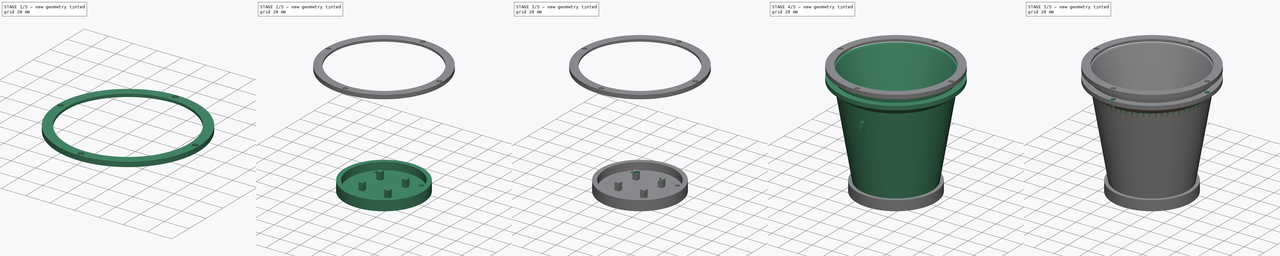
[diagram: build sequence overview — one tinted view per stage of 5, left to right]
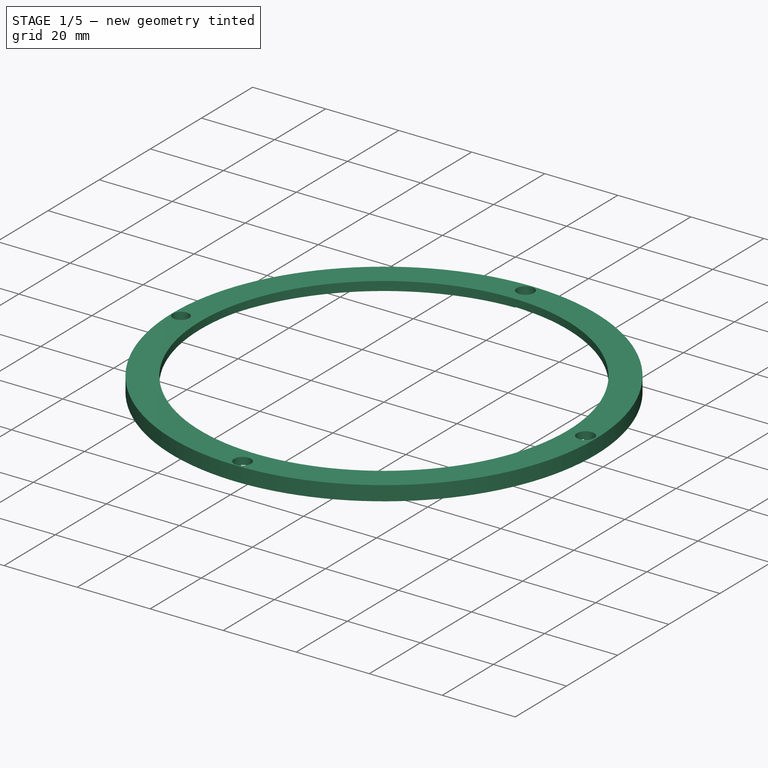
[diagram: stage 1 of 5 — iso view after this stage's code; geometry added in this stage tinted green]
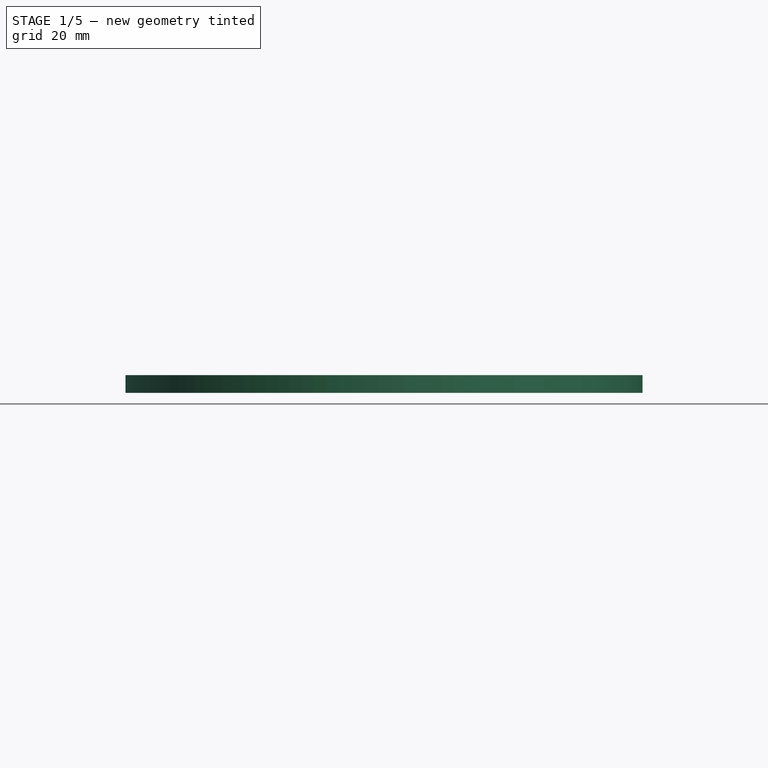
[diagram: stage 1 of 5 — front view after this stage's code; geometry added in this stage tinted green]
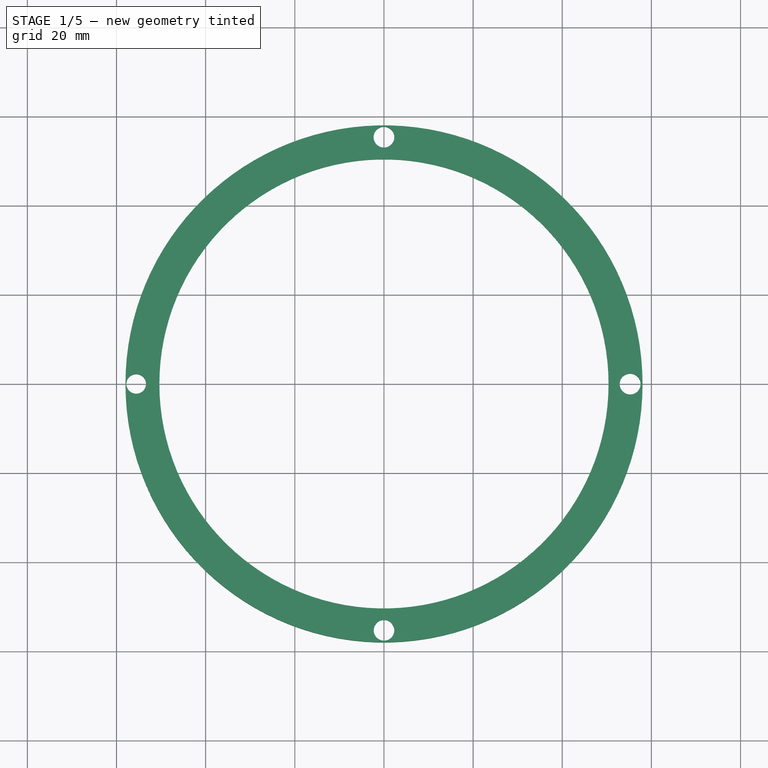
[diagram: stage 1 of 5 — top view after this stage's code; geometry added in this stage tinted green]
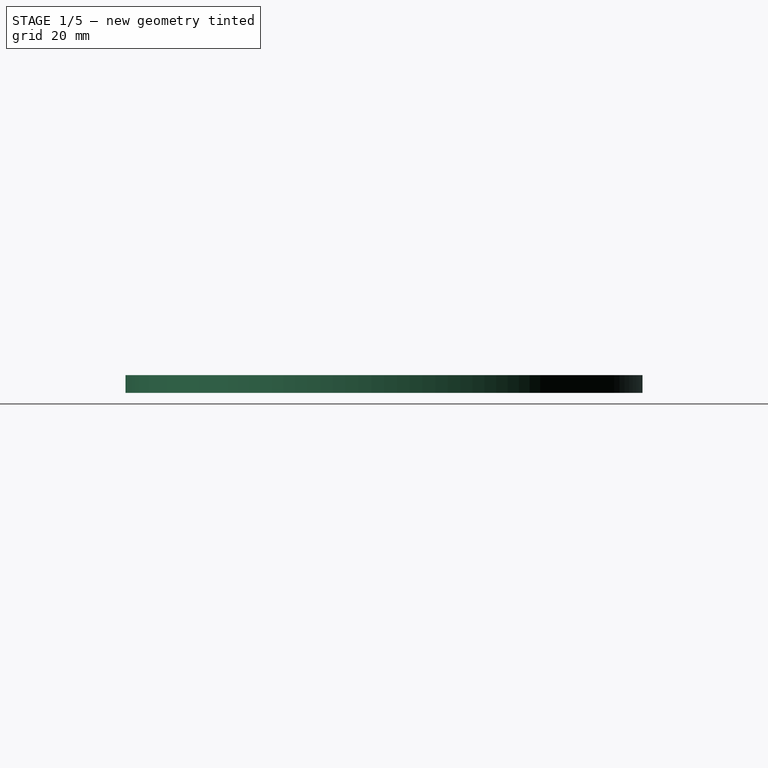
[diagram: stage 1 of 5 — right view after this stage's code; geometry added in this stage tinted green]
FCSTD DOCUMENT  (FreeCAD 0.16R6706 (Git))
Label: enclosure007(not James Bond)
License: All rights reserved
LicenseURL: http://en.wikipedia.org/wiki/All_rights_reserved
objects: Sketcher::SketchObject×19, PartDesign::Pocket×12, PartDesign::Pad×4, PartDesign::Revolution×2, PartDesign::MultiTransform×1, Part::Cut×1
note: 57 computed .brp shape members not serialized (recipe doc carries the construction recipe); baked Part::Feature solids carry a one-line shape summary decoded from their .brp

FEATURE [Sketcher::SketchObject] Sketch016
  Placement = pos=(0,0,100) rot=(0,0,1;0rad)
  sketch-geometry (1):
    g0: Circle CenterX=0.009453 CenterY=0.01044 CenterZ=0 NormalX=0 NormalY=0 NormalZ=1 Radius=58.0023
FEATURE [PartDesign::Pad] Pad003
  Length = 4
  Length2 = 100
  Placement = pos=(0,0,100) rot=(0,0,1;0rad)
  Sketch = -> Sketch016
  Type = 0
FEATURE [Sketcher::SketchObject] Sketch017
  Placement = pos=(0,0,100) rot=(1,0,0;3.14159rad)
  Support = -> Pad003 [Face2]
  sketch-geometry (1):
    g0: Circle CenterX=0 CenterY=0 CenterZ=0 NormalX=0 NormalY=0 NormalZ=1 Radius=53.6616
FEATURE [PartDesign::Pocket] Pocket009
  Length = 2
  Placement = pos=(0,0,100) rot=(0,0,1;0rad)
  Sketch = -> Sketch017
  Type = 0
FEATURE [Sketcher::SketchObject] Sketch018
  Placement = pos=(0,0,102) rot=(1,0,0;3.14159rad)
  Support = -> Pocket009 [Face5]
  sketch-geometry (1):
    g0: Circle CenterX=0 CenterY=0 CenterZ=0 NormalX=0 NormalY=0 NormalZ=1 Radius=50.3822
FEATURE [PartDesign::Pocket] Pocket010
  Length = 10
  Placement = pos=(0,0,100) rot=(0,0,1;0rad)
  Sketch = -> Sketch018
  Type = 0
FEATURE [Sketcher::SketchObject] Sketch019
  Placement = pos=(0,0,104) rot=(0,0,1;0rad)
  Support = -> Pocket010 [Face3]
  sketch-geometry (4):
    g0: Circle CenterX=55.2273 CenterY=-0.025824 CenterZ=0 NormalX=0 NormalY=0 NormalZ=1 Radius=2.34262
    g1: Circle CenterX=0.006845 CenterY=-55.2913 CenterZ=0 NormalX=0 NormalY=0 NormalZ=1 Radius=2.30952
    g2: Circle CenterX=-55.5846 CenterY=0.009231 CenterZ=0 NormalX=0 NormalY=0 NormalZ=1 Radius=2.20176
    g3: Circle CenterX=-0.004998 CenterY=55.3713 CenterZ=0 NormalX=0 NormalY=0 NormalZ=1 Radius=2.32982
FEATURE [PartDesign::Pocket] Pocket011  label="Assembly-C"
  Length = 5
  Placement = pos=(0,0,100) rot=(0,0,1;0rad)
  Sketch = -> Sketch019
  Type = 0
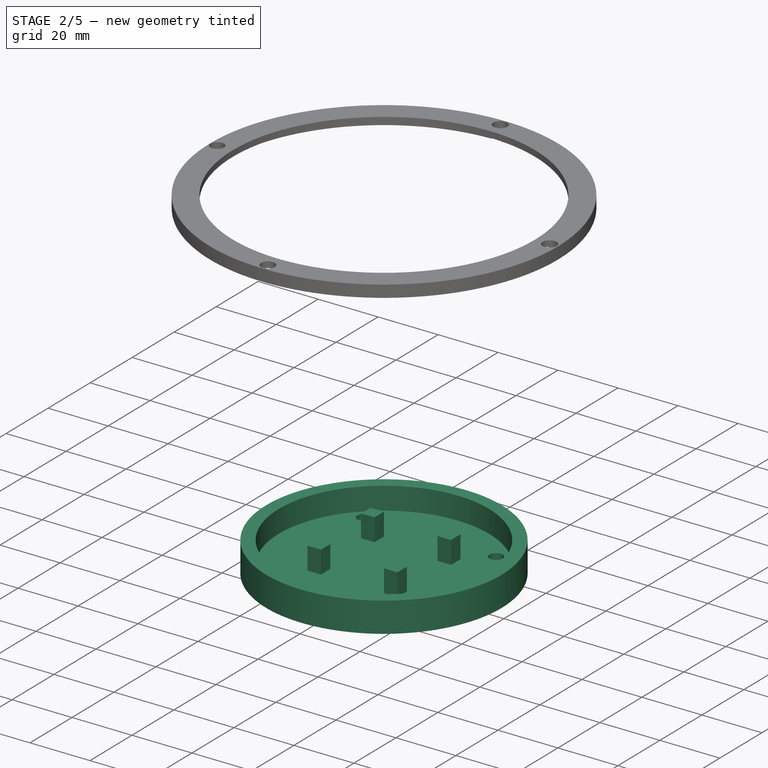
[diagram: stage 2 of 5 — iso view after this stage's code; geometry added in this stage tinted green]
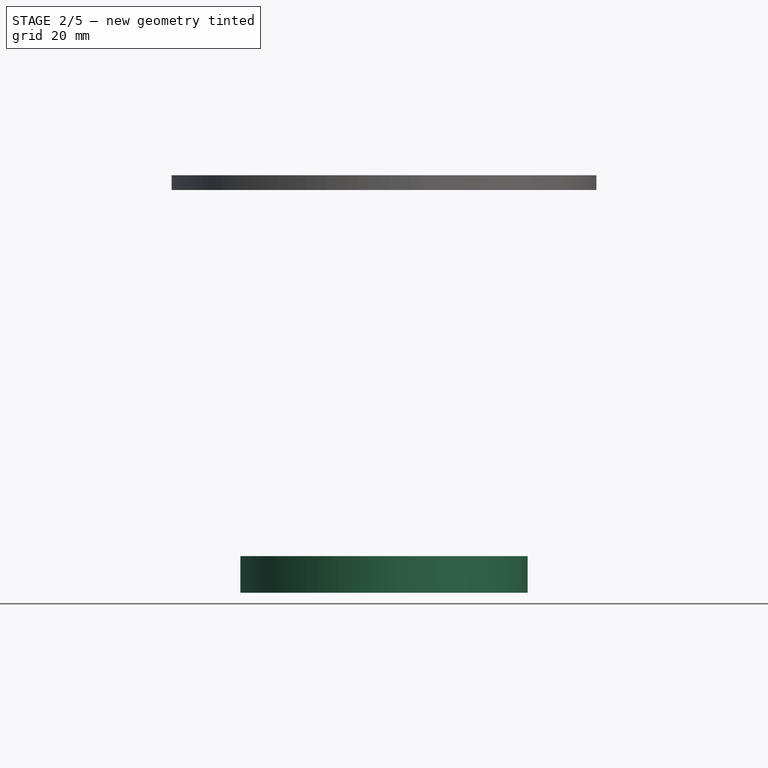
[diagram: stage 2 of 5 — front view after this stage's code; geometry added in this stage tinted green]
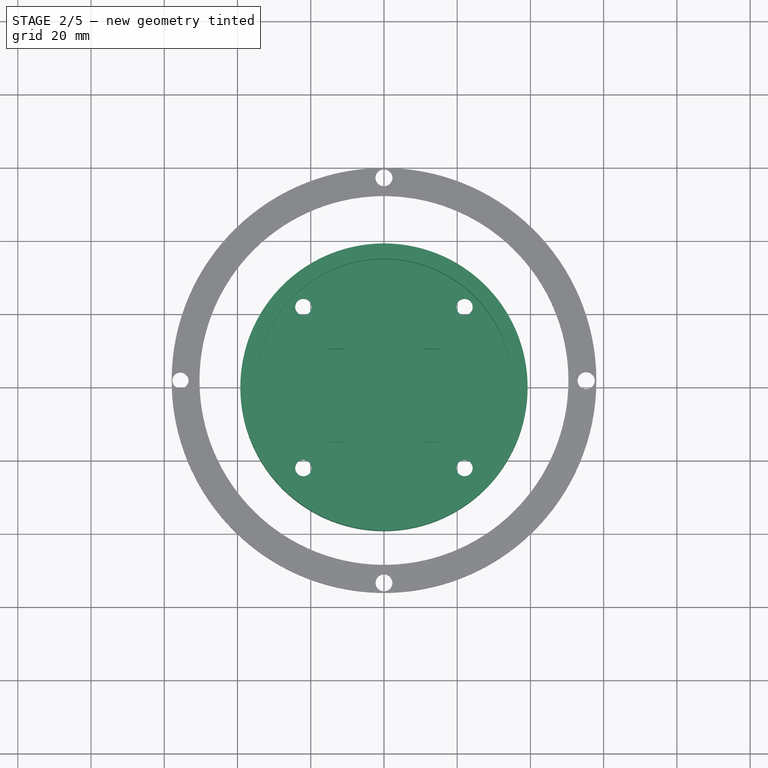
[diagram: stage 2 of 5 — top view after this stage's code; geometry added in this stage tinted green]
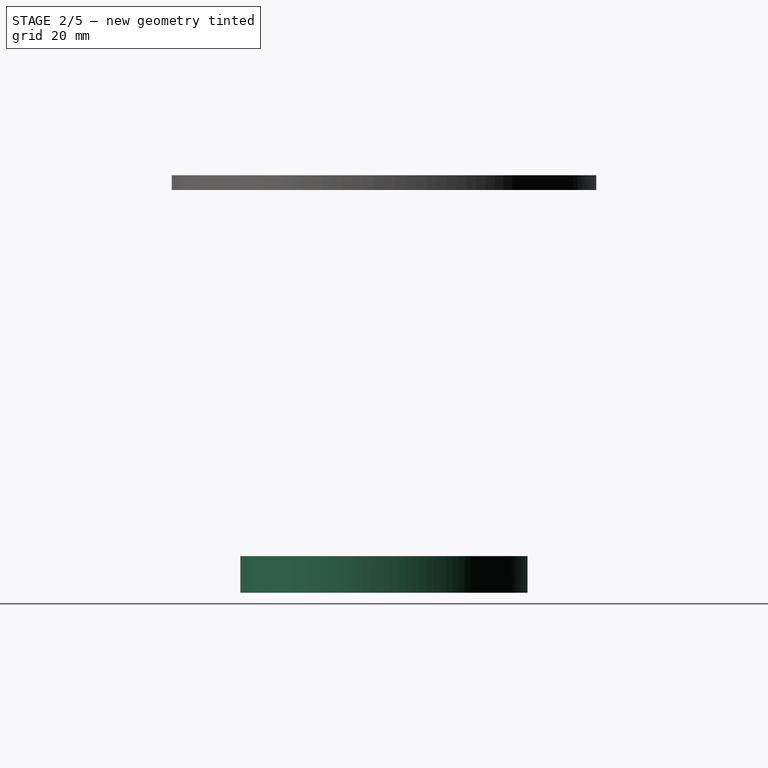
[diagram: stage 2 of 5 — right view after this stage's code; geometry added in this stage tinted green]
FEATURE [Sketcher::SketchObject] Sketch006
  Placement = pos=(0,0,-10) rot=(0,0,1;0rad)
  sketch-geometry (1):
    g0: Circle CenterX=0 CenterY=0 CenterZ=0 NormalX=0 NormalY=0 NormalZ=1 Radius=39.23
FEATURE [PartDesign::Pad] Pad001
  Length = 10
  Length2 = 100
  Placement = pos=(0,0,-10) rot=(0,0,1;0rad)
  Sketch = -> Sketch006
  Type = 0
FEATURE [Sketcher::SketchObject] Sketch007
  Support = -> Pad001 [Face3]
  sketch-geometry (1):
    g0: Circle CenterX=0 CenterY=0 CenterZ=0 NormalX=0 NormalY=0 NormalZ=1 Radius=35.0307
FEATURE [PartDesign::Pocket] Pocket003
  Length = 7.5
  Placement = pos=(0,0,-10) rot=(0,0,1;0rad)
  Sketch = -> Sketch007
  Type = 0
FEATURE [Sketcher::SketchObject] Sketch008
  Placement = pos=(0,0,-7.5) rot=(0,0,1;0rad)
  Support = -> Pocket003 [Face5]
  sketch-geometry (4):
    g0: Circle CenterX=22 CenterY=-22 CenterZ=0 NormalX=0 NormalY=0 NormalZ=1 Radius=2.22338
    g1: Circle CenterX=22 CenterY=22 CenterZ=0 NormalX=0 NormalY=0 NormalZ=1 Radius=2.22785
    g2: Circle CenterX=-22 CenterY=22 CenterZ=0 NormalX=0 NormalY=0 NormalZ=1 Radius=2.23607
    g3: Circle CenterX=-22 CenterY=-22 CenterZ=0 NormalX=0 NormalY=0 NormalZ=1 Radius=2.23607
FEATURE [PartDesign::Pocket] Pocket004
  Length = 5
  Placement = pos=(0,0,-10) rot=(0,0,1;0rad)
  Sketch = -> Sketch008
  Type = 0
FEATURE [Sketcher::SketchObject] Sketch009
  Placement = pos=(0,0,-7.5) rot=(0,0,1;0rad)
  Support = -> Pocket004 [Face9]
  sketch-geometry (4):
    g0: LineSegment StartX=-13 StartY=-13 StartZ=0 EndX=13 EndY=-13 EndZ=0
    g1: LineSegment StartX=13 StartY=-13 StartZ=0 EndX=13 EndY=13 EndZ=0
    g2: LineSegment StartX=13 StartY=13 StartZ=0 EndX=-13 EndY=13 EndZ=0
    g3: LineSegment StartX=-13 StartY=13 StartZ=0 EndX=-13 EndY=-13 EndZ=0
  constraints (8):
    c: Coincident(g0,g1)
    c: Coincident(g1,g2)
    c: Coincident(g2,g3)
    c: Coincident(g3,g0)
    c: Horizontal(g0)
    c: Horizontal(g2)
    c: Vertical(g1)
    c: Vertical(g3)
FEATURE [Sketcher::SketchObject] Sketch010
  Placement = pos=(0,0,-7.5) rot=(0,0,1;0rad)
  Support = -> Pocket004 [Face9]
FEATURE [Sketcher::SketchObject] Sketch011
  Placement = pos=(0,0,-7.5) rot=(0,0,1;0rad)
  Support = -> Pocket004 [Face9]
  sketch-geometry (16):
    g0: LineSegment StartX=15 StartY=15 StartZ=0 EndX=10.5 EndY=15 EndZ=0
    g1: LineSegment StartX=10.5 StartY=15 StartZ=0 EndX=10.5 EndY=10.5 EndZ=0
    g2: LineSegment StartX=10.5 StartY=10.5 StartZ=0 EndX=15 EndY=10.5 EndZ=0
    g3: LineSegment StartX=15 StartY=10.5 StartZ=0 EndX=15 EndY=15 EndZ=0
    g4: LineSegment StartX=15 StartY=-15 StartZ=0 EndX=10.5 EndY=-15 EndZ=0
    g5: LineSegment StartX=10.5 StartY=-15 StartZ=0 EndX=10.5 EndY=-10.5 EndZ=0
    g6: LineSegment StartX=10.5 StartY=-10.5 StartZ=0 EndX=15 EndY=-10.5 EndZ=0
    g7: LineSegment StartX=15 StartY=-10.5 StartZ=0 EndX=15 EndY=-15 EndZ=0
    g8: LineSegment StartX=-15 StartY=-15 StartZ=0 EndX=-10.5 EndY=-15 EndZ=0
    g9: LineSegment StartX=-10.5 StartY=-15 StartZ=0 EndX=-10.5 EndY=-10.5 EndZ=0
    g10: LineSegment StartX=-10.5 StartY=-10.5 StartZ=0 EndX=-15 EndY=-10.5 EndZ=0
    g11: LineSegment StartX=-15 StartY=-10.5 StartZ=0 EndX=-15 EndY=-15 EndZ=0
    g12: LineSegment StartX=-15 StartY=15 StartZ=0 EndX=-10.5 EndY=15 EndZ=0
    g13: LineSegment StartX=-10.5 StartY=15 StartZ=0 EndX=-10.5 EndY=10.5 EndZ=0
    g14: LineSegment StartX=-10.5 StartY=10.5 StartZ=0 EndX=-15 EndY=10.5 EndZ=0
    g15: LineSegment StartX=-15 StartY=10.5 StartZ=0 EndX=-15 EndY=15 EndZ=0
  constraints (32):
    c: Coincident(g0,g1)
    c: Coincident(g1,g2)
    c: Coincident(g2,g3)
    c: Coincident(g3,g0)
    c: Horizontal(g0)
    c: Horizontal(g2)
    c: Vertical(g1)
    c: Vertical(g3)
    c: Coincident(g4,g5)
    c: Coincident(g5,g6)
    c: Coincident(g6,g7)
    c: Coincident(g7,g4)
    c: Horizontal(g4)
    c: Horizontal(g6)
    c: Vertical(g5)
    c: Vertical(g7)
    c: Coincident(g8,g9)
    c: Coincident(g9,g10)
    c: Coincident(g10,g11)
    c: Coincident(g11,g8)
    c: Horizontal(g8)
    c: Horizontal(g10)
    c: Vertical(g9)
    c: Vertical(g11)
    c: Coincident(g12,g13)
    c: Coincident(g13,g14)
    c: Coincident(g14,g15)
    c: Coincident(g15,g12)
    c: Horizontal(g12)
    c: Horizontal(g14)
    c: Vertical(g13)
    c: Vertical(g15)
FEATURE [PartDesign::Pad] Pad002
  Length = 7.5
  Length2 = 100
  Placement = pos=(0,0,-10) rot=(0,0,1;0rad)
  Sketch = -> Sketch011
  Type = 0
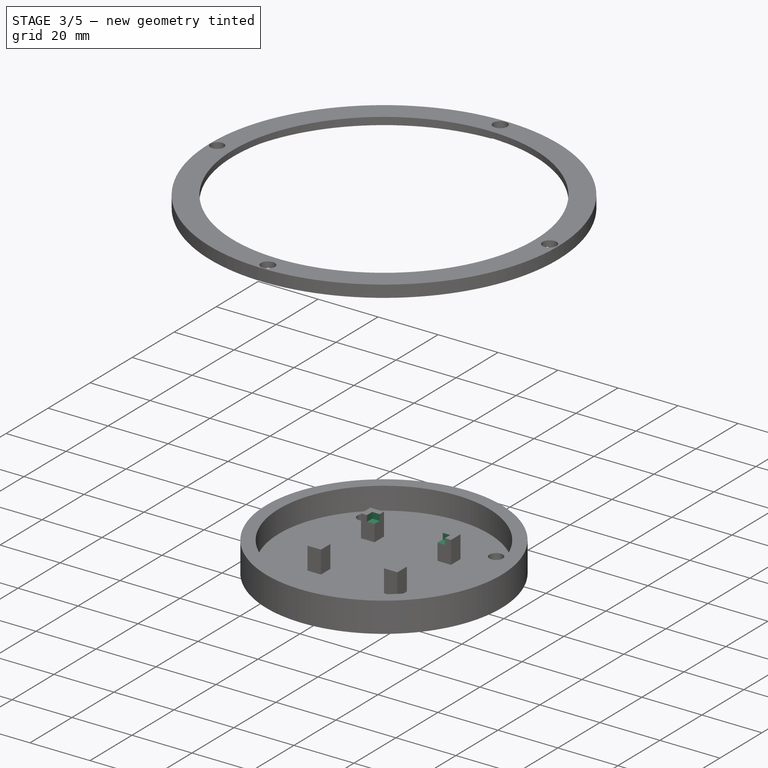
[diagram: stage 3 of 5 — iso view after this stage's code; geometry added in this stage tinted green]
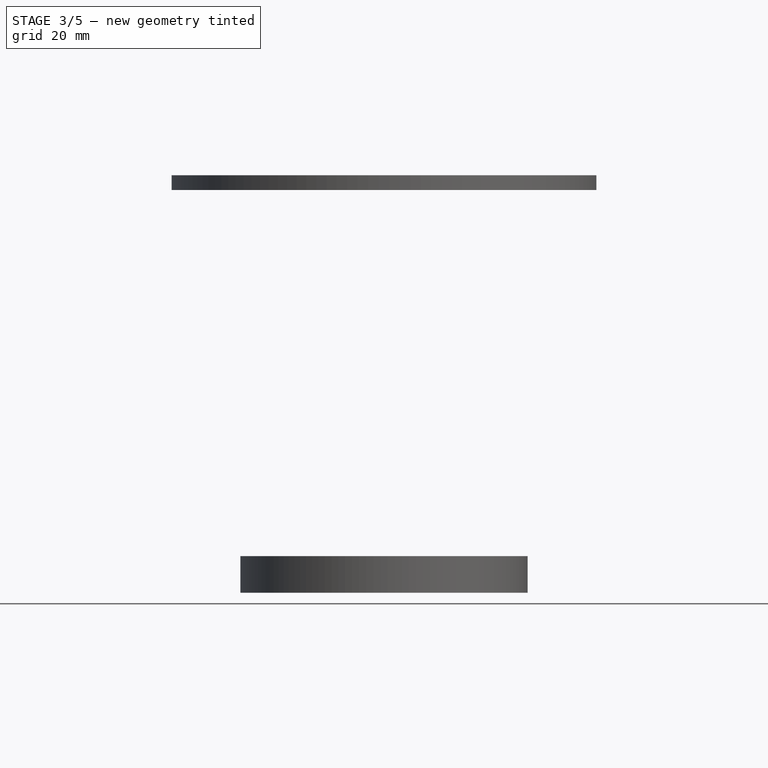
[diagram: stage 3 of 5 — front view after this stage's code; geometry added in this stage tinted green]
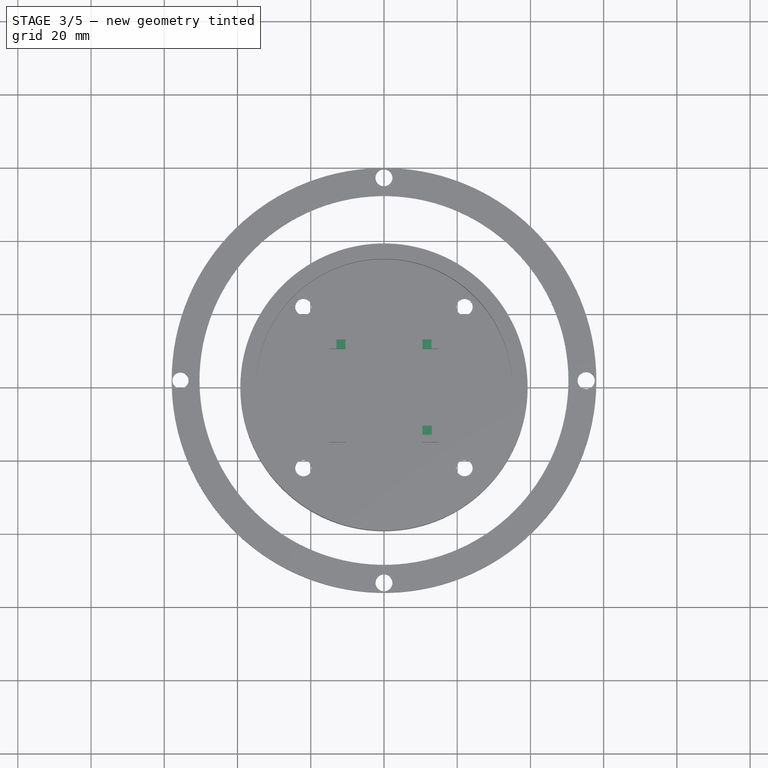
[diagram: stage 3 of 5 — top view after this stage's code; geometry added in this stage tinted green]
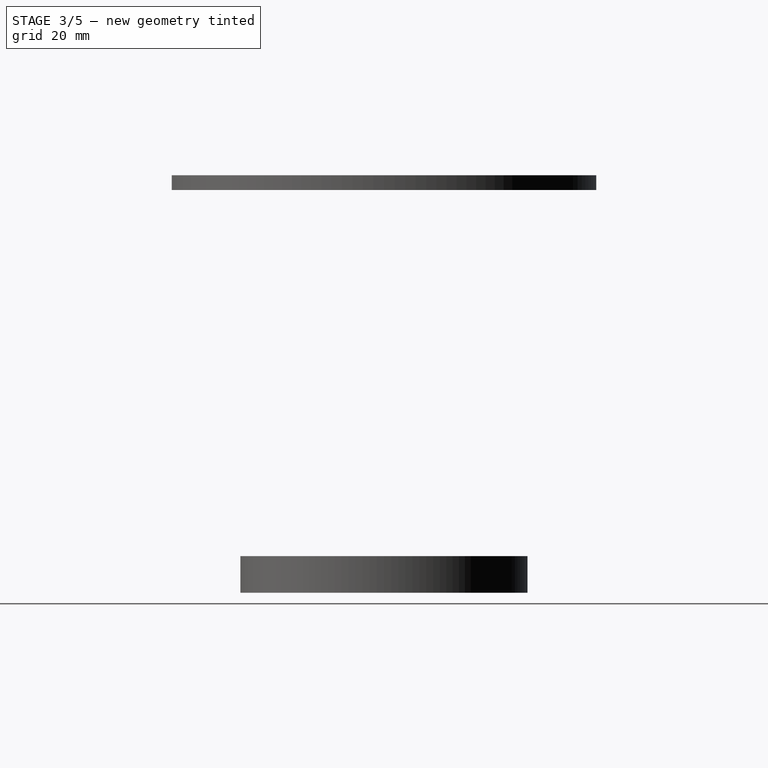
[diagram: stage 3 of 5 — right view after this stage's code; geometry added in this stage tinted green]
FEATURE [Sketcher::SketchObject] Sketch012
  Support = -> Pad002 [Face26]
  sketch-geometry (4):
    g0: LineSegment StartX=-12.9907 StartY=12.9784 StartZ=0 EndX=-10.1593 EndY=12.9784 EndZ=0
    g1: LineSegment StartX=-10.1593 StartY=12.9784 StartZ=0 EndX=-10.1593 EndY=9.88996 EndZ=0
    g2: LineSegment StartX=-10.1593 StartY=9.88996 StartZ=0 EndX=-12.9907 EndY=9.88996 EndZ=0
    g3: LineSegment StartX=-12.9907 StartY=9.88996 StartZ=0 EndX=-12.9907 EndY=12.9784 EndZ=0
  constraints (8):
    c: Coincident(g0,g1)
    c: Coincident(g1,g2)
    c: Coincident(g2,g3)
    c: Coincident(g3,g0)
    c: Horizontal(g0)
    c: Horizontal(g2)
    c: Vertical(g1)
    c: Vertical(g3)
FEATURE [PartDesign::Pocket] Pocket005
  Length = 2
  Placement = pos=(0,0,-10) rot=(0,0,1;0rad)
  Sketch = -> Sketch012
  Type = 0
FEATURE [Sketcher::SketchObject] Sketch013
  Support = -> Pocket005 [Face3]
  sketch-geometry (4):
    g0: LineSegment StartX=12.9727 StartY=12.9983 StartZ=0 EndX=10.016 EndY=12.9983 EndZ=0
    g1: LineSegment StartX=10.016 StartY=12.9983 StartZ=0 EndX=10.016 EndY=10.1423 EndZ=0
    g2: LineSegment StartX=10.016 StartY=10.1423 StartZ=0 EndX=12.9727 EndY=10.1423 EndZ=0
    g3: LineSegment StartX=12.9727 StartY=10.1423 StartZ=0 EndX=12.9727 EndY=12.9983 EndZ=0
  constraints (8):
    c: Coincident(g0,g1)
    c: Coincident(g1,g2)
    c: Coincident(g2,g3)
    c: Coincident(g3,g0)
    c: Horizontal(g0)
    c: Horizontal(g2)
    c: Vertical(g1)
    c: Vertical(g3)
FEATURE [PartDesign::Pocket] Pocket006
  Length = 2
  Placement = pos=(0,0,-10) rot=(0,0,1;0rad)
  Sketch = -> Sketch013
  Type = 0
FEATURE [Sketcher::SketchObject] Sketch014
  Support = -> Pocket006 [Face3]
  sketch-geometry (4):
    g0: LineSegment StartX=13.041 StartY=-13.0376 StartZ=0 EndX=10.3044 EndY=-13.0376 EndZ=0
    g1: LineSegment StartX=10.3044 StartY=-13.0376 StartZ=0 EndX=10.3044 EndY=-10.2812 EndZ=0
    g2: LineSegment StartX=10.3044 StartY=-10.2812 StartZ=0 EndX=13.041 EndY=-10.2812 EndZ=0
    g3: LineSegment StartX=13.041 StartY=-10.2812 StartZ=0 EndX=13.041 EndY=-13.0376 EndZ=0
  constraints (8):
    c: Coincident(g0,g1)
    c: Coincident(g1,g2)
    c: Coincident(g2,g3)
    c: Coincident(g3,g0)
    c: Horizontal(g0)
    c: Horizontal(g2)
    c: Vertical(g1)
    c: Vertical(g3)
FEATURE [PartDesign::Pocket] Pocket007
  Length = 2
  Placement = pos=(0,0,-10) rot=(0,0,1;0rad)
  Sketch = -> Sketch014
  Type = 0
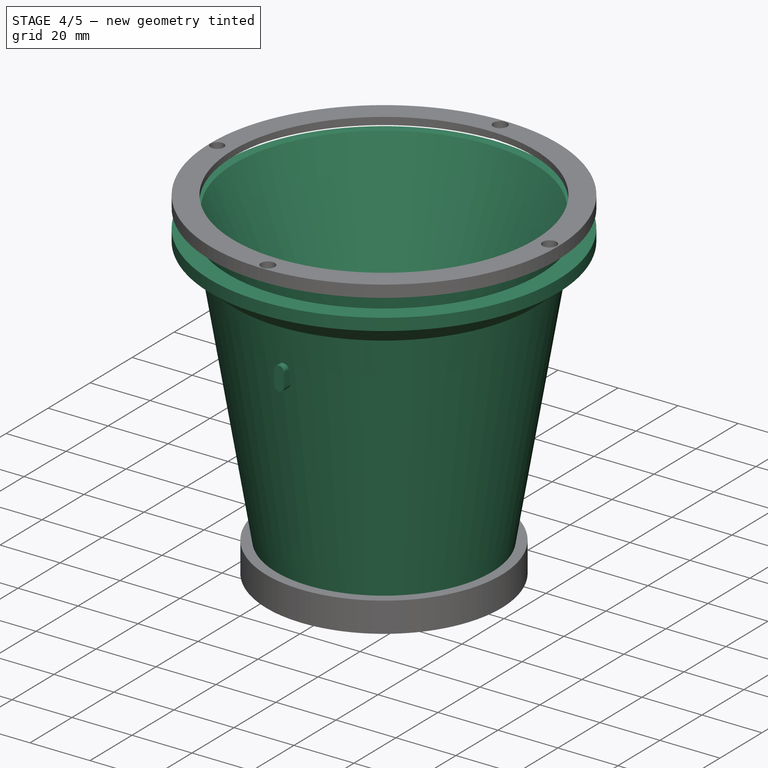
[diagram: stage 4 of 5 — iso view after this stage's code; geometry added in this stage tinted green]
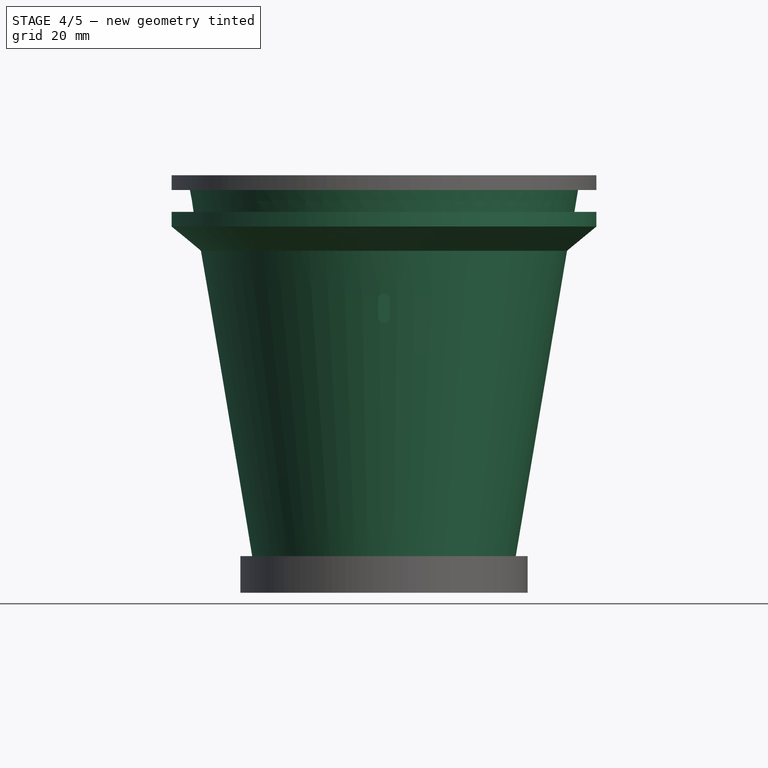
[diagram: stage 4 of 5 — front view after this stage's code; geometry added in this stage tinted green]
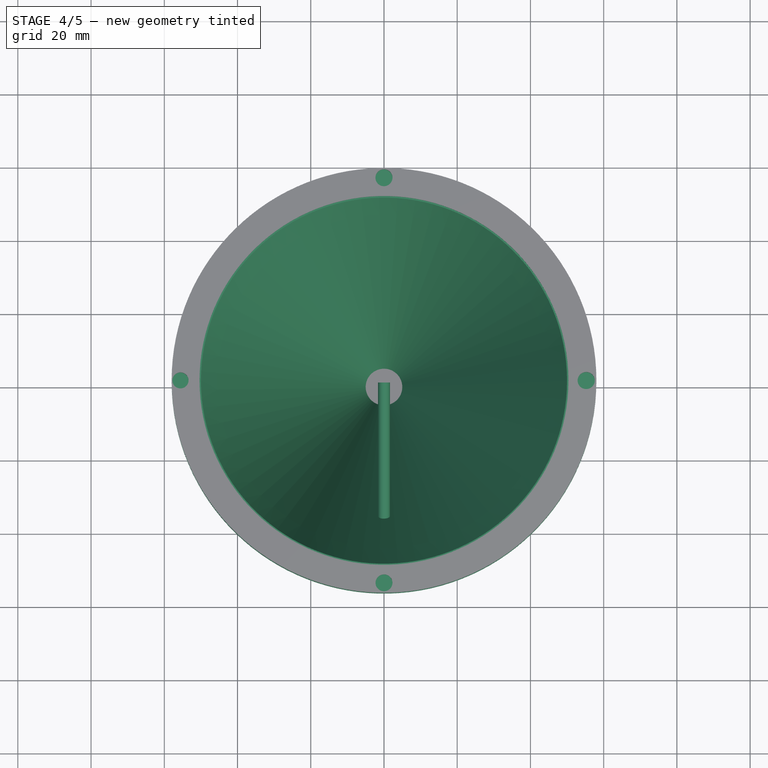
[diagram: stage 4 of 5 — top view after this stage's code; geometry added in this stage tinted green]
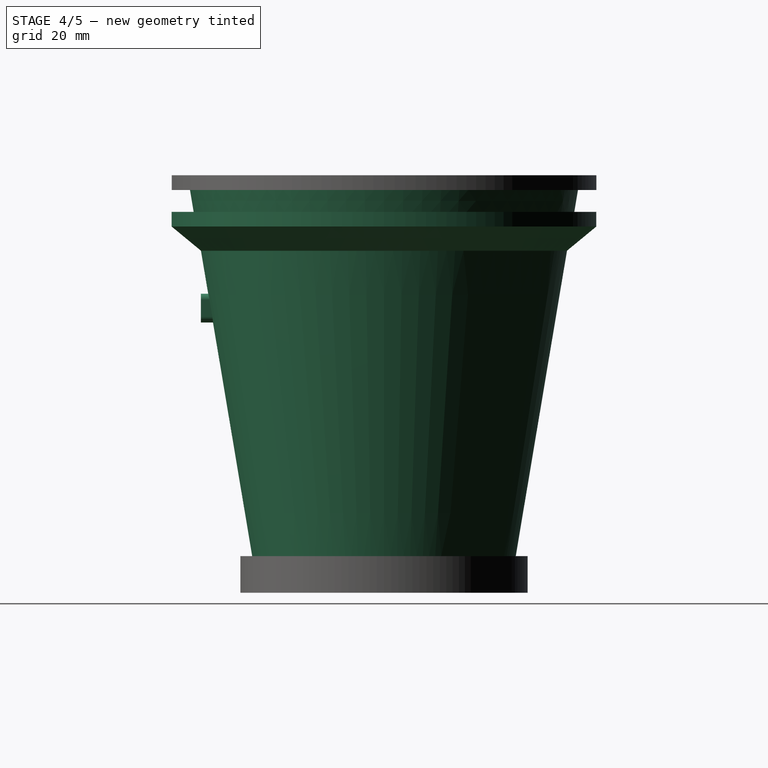
[diagram: stage 4 of 5 — right view after this stage's code; geometry added in this stage tinted green]
FEATURE [Sketcher::SketchObject] Sketch003  label="assemblyA-origin"
  Placement = pos=(0,0,0) rot=(1,0,0;1.5708rad)
  sketch-geometry (8):
    g0: LineSegment StartX=5 StartY=0 StartZ=0 EndX=50 EndY=100 EndZ=0
    g1: LineSegment StartX=50 StartY=100 StartZ=0 EndX=53 EndY=100 EndZ=0
    g2: LineSegment StartX=53 StartY=100 StartZ=0 EndX=52 EndY=94 EndZ=0
    g3: LineSegment StartX=52 StartY=94 StartZ=0 EndX=58 EndY=94 EndZ=0
    g4: LineSegment StartX=58 StartY=94 StartZ=0 EndX=58 EndY=90 EndZ=0
    g5: LineSegment StartX=58 StartY=90 StartZ=0 EndX=50 EndY=83.4028 EndZ=0
    g6: LineSegment StartX=50 StartY=83.4028 StartZ=0 EndX=36 EndY=0 EndZ=0
    g7: LineSegment StartX=36 StartY=0 StartZ=0 EndX=5 EndY=0 EndZ=0
  constraints (8):
    c: Coincident(g0,g1)
    c: Coincident(g1,g2)
    c: Coincident(g2,g3)
    c: Coincident(g3,g4)
    c: Coincident(g4,g5)
    c: Coincident(g5,g6)
    c: Coincident(g6,g7)
    c: Coincident(g7,g0)
FEATURE [PartDesign::Revolution] Revolution001
  Angle = 360
  Axis = (0,0,1)
  Base = (0,0,0)
  Placement = pos=(0,0,0) rot=(1,0,0;1.5708rad)
  ReferenceAxis = -> Sketch003 [V_Axis]
  Reversed = true
  Sketch = -> Sketch003
FEATURE [PartDesign::MultiTransform] MultiTransform
  Originals = -> [Revolution001]
  Placement = pos=(0,0,0) rot=(1,0,0;1.5708rad)
FEATURE [Sketcher::SketchObject] Sketch
  Placement = pos=(0,0,0) rot=(1,0,0;3.14159rad)
  Support = -> Revolution001 [Face8]
  sketch-geometry (4):
    g0: Circle CenterX=22 CenterY=22 CenterZ=0 NormalX=0 NormalY=0 NormalZ=1 Radius=2.11218
    g1: Circle CenterX=-22 CenterY=22 CenterZ=0 NormalX=0 NormalY=0 NormalZ=1 Radius=2.08239
    g2: Circle CenterX=22 CenterY=-22 CenterZ=0 NormalX=0 NormalY=0 NormalZ=1 Radius=2.11264
    g3: Circle CenterX=-22 CenterY=-22 CenterZ=0 NormalX=0 NormalY=0 NormalZ=1 Radius=2.0919
FEATURE [PartDesign::Pocket] Pocket001
  Length = 12
  Placement = pos=(0,0,0) rot=(1,0,0;1.5708rad)
  Sketch = -> Sketch
  Type = 0
FEATURE [Sketcher::SketchObject] Sketch004
  Placement = pos=(0,0,0) rot=(1,0,0;1.5708rad)
  sketch-geometry (4):
    g0: ArcOfCircle CenterX=0 CenterY=70 CenterZ=0 NormalX=0 NormalY=0 NormalZ=1 Radius=1.64551 StartAngle=0 EndAngle=3.14159
    g1: ArcOfCircle CenterX=0 CenterY=65.4394 CenterZ=0 NormalX=0 NormalY=0 NormalZ=1 Radius=1.64551 StartAngle=3.14159 EndAngle=6.28319
    g2: LineSegment StartX=-1.64551 StartY=70 StartZ=0 EndX=-1.64551 EndY=65.4394 EndZ=0
    g3: LineSegment StartX=1.64551 StartY=70 StartZ=0 EndX=1.64551 EndY=65.4394 EndZ=0
  constraints (6):
    c: Tangent(g0,g3) = 1.5708
    c: Tangent(g0,g2) = -1.5708
    c: Tangent(g2,g1) = -1.5708
    c: Tangent(g3,g1) = 1.5708
    c: Vertical(g2)
    c: Equal(g0,g1)
FEATURE [PartDesign::Pad] Pad
  Length = 50
  Length2 = 100
  Placement = pos=(0,0,0) rot=(1,0,0;1.5708rad)
  Sketch = -> Sketch004
  Type = 0
FEATURE [Sketcher::SketchObject] Sketch015
  Support = -> Pocket007 [Face3]
  sketch-geometry (4):
    g0: LineSegment StartX=-12.9593 StartY=-12.9865 StartZ=0 EndX=-10.2634 EndY=-12.9865 EndZ=0
    g1: LineSegment StartX=-10.2634 StartY=-12.9865 StartZ=0 EndX=-10.2634 EndY=-10.3457 EndZ=0
    g2: LineSegment StartX=-10.2634 StartY=-10.3457 StartZ=0 EndX=-12.9593 EndY=-10.3457 EndZ=0
    g3: LineSegment StartX=-12.9593 StartY=-10.3457 StartZ=0 EndX=-12.9593 EndY=-12.9865 EndZ=0
  constraints (8):
    c: Coincident(g0,g1)
    c: Coincident(g1,g2)
    c: Coincident(g2,g3)
    c: Coincident(g3,g0)
    c: Horizontal(g0)
    c: Horizontal(g2)
    c: Vertical(g1)
    c: Vertical(g3)
FEATURE [PartDesign::Pocket] Pocket008  label="Assembly B"
  Length = 2
  Placement = pos=(0,0,-10) rot=(0,0,1;0rad)
  Sketch = -> Sketch015
  Type = 0
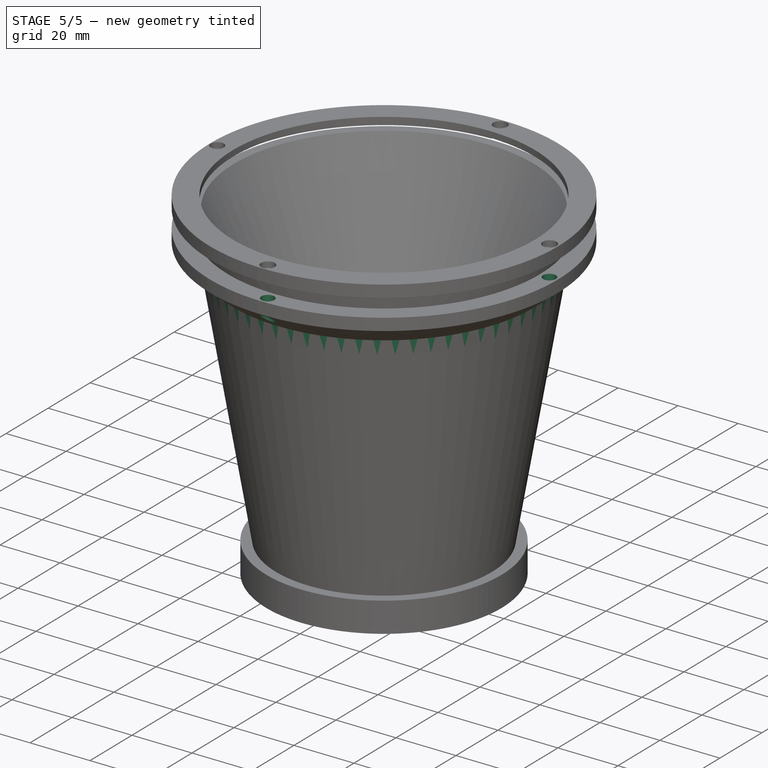
[diagram: stage 5 of 5 — iso view after this stage's code; geometry added in this stage tinted green]
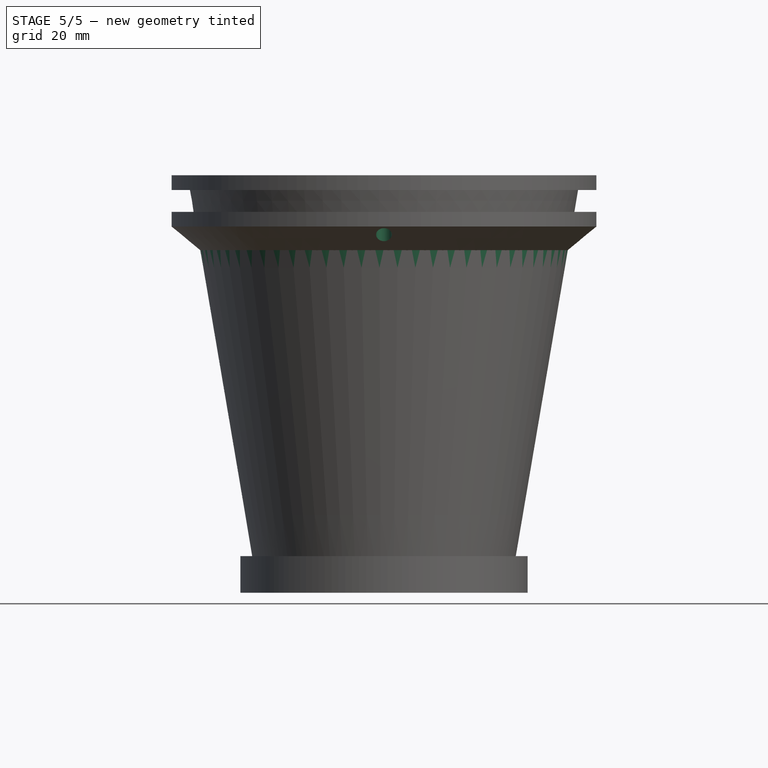
[diagram: stage 5 of 5 — front view after this stage's code; geometry added in this stage tinted green]
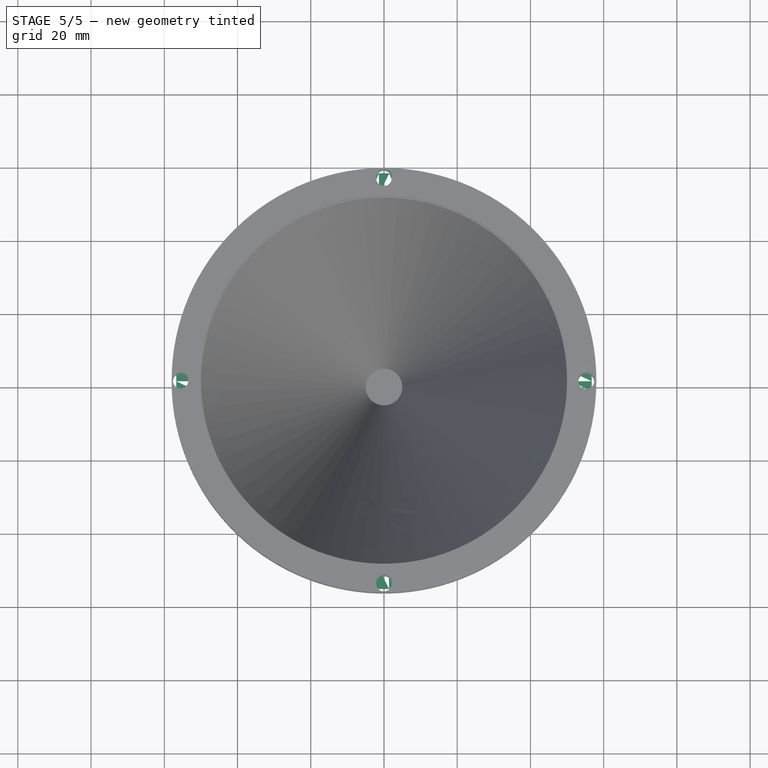
[diagram: stage 5 of 5 — top view after this stage's code; geometry added in this stage tinted green]
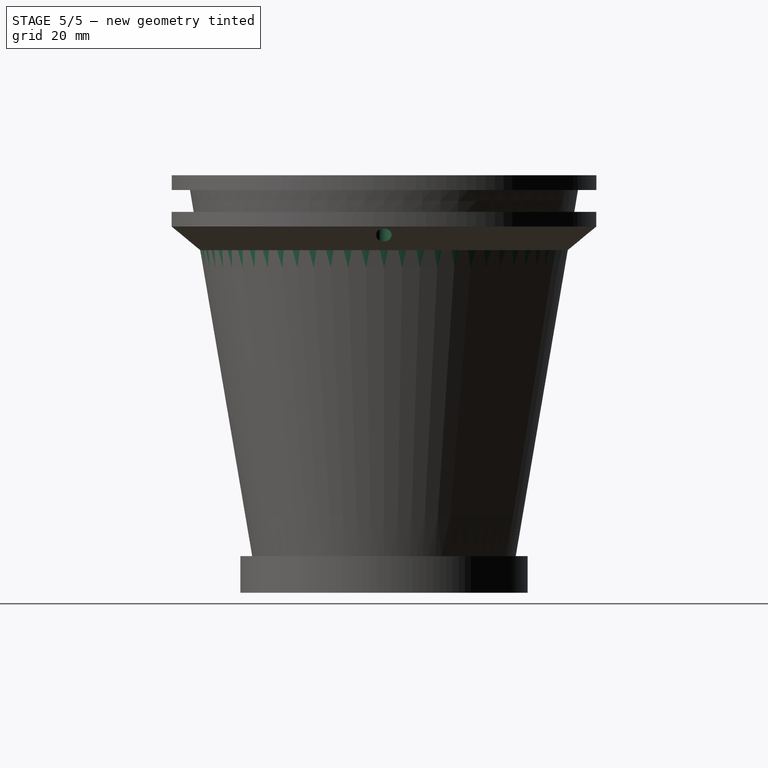
[diagram: stage 5 of 5 — right view after this stage's code; geometry added in this stage tinted green]
FEATURE [Sketcher::SketchObject] Sketch001
  Placement = pos=(0,0,0) rot=(1,0,0;1.5708rad)
  sketch-geometry (9):
    g0: LineSegment StartX=5 StartY=0 StartZ=0 EndX=36 EndY=0 EndZ=0
    g1: LineSegment StartX=36 StartY=0 StartZ=0 EndX=53 EndY=100 EndZ=0
    g2: LineSegment StartX=53 StartY=100 StartZ=0 EndX=50 EndY=100 EndZ=0
    g3: LineSegment StartX=50 StartY=100 StartZ=0 EndX=5 EndY=0 EndZ=0
    g4: LineSegment StartX=51.5348 StartY=94 StartZ=0 EndX=56.7484 EndY=94 EndZ=0
    g5: LineSegment StartX=56.7484 StartY=94 StartZ=0 EndX=56.7534 EndY=90 EndZ=0
    g6: LineSegment StartX=56.7534 StartY=90 StartZ=0 EndX=51 EndY=90 EndZ=0
    g7: LineSegment StartX=51 StartY=90 StartZ=0 EndX=51.5348 EndY=94 EndZ=0
    g8: LineSegment StartX=51.5348 StartY=94 StartZ=0 EndX=51.449 EndY=94.2977 EndZ=0
  constraints (8):
    c: Coincident(g0,g1)
    c: Coincident(g1,g2)
    c: Coincident(g2,g3)
    c: Coincident(g3,g0)
    c: Coincident(g4,g5)
    c: Coincident(g5,g6)
    c: Coincident(g6,g7)
    c: Coincident(g7,g8)
FEATURE [PartDesign::Revolution] Revolution
  Angle = 360
  Axis = (0,0,1)
  Base = (0,0,0)
  Placement = pos=(0,0,0) rot=(1,0,0;1.5708rad)
  ReferenceAxis = -> Sketch001 [V_Axis]
  Reversed = true
  Sketch = -> Sketch001
FEATURE [PartDesign::Pocket] Pocket
  Length = 12
  Placement = pos=(0,0,0) rot=(1,0,0;1.5708rad)
  Type = 0
FEATURE [Part::Cut] Cut
  Base = -> Pocket001
  Tool = -> Pad
FEATURE [Sketcher::SketchObject] Sketch005
  Placement = pos=(0,0,94) rot=(0,0,1;0rad)
  Support = -> Cut [Face14]
  sketch-geometry (4):
    g0: Circle CenterX=55.2184 CenterY=-0.064825 CenterZ=0 NormalX=0 NormalY=0 NormalZ=1 Radius=2.14912
    g1: Circle CenterX=0 CenterY=55.3997 CenterZ=0 NormalX=0 NormalY=0 NormalZ=1 Radius=2.10877
    g2: Circle CenterX=-55.5488 CenterY=0 CenterZ=0 NormalX=0 NormalY=0 NormalZ=1 Radius=2.06514
    g3: Circle CenterX=0 CenterY=-55.3111 CenterZ=0 NormalX=0 NormalY=0 NormalZ=1 Radius=2.14971
FEATURE [PartDesign::Pocket] Pocket002  label="assemblyA-funnel"
  Length = 15
  Sketch = -> Sketch005
  Type = 0
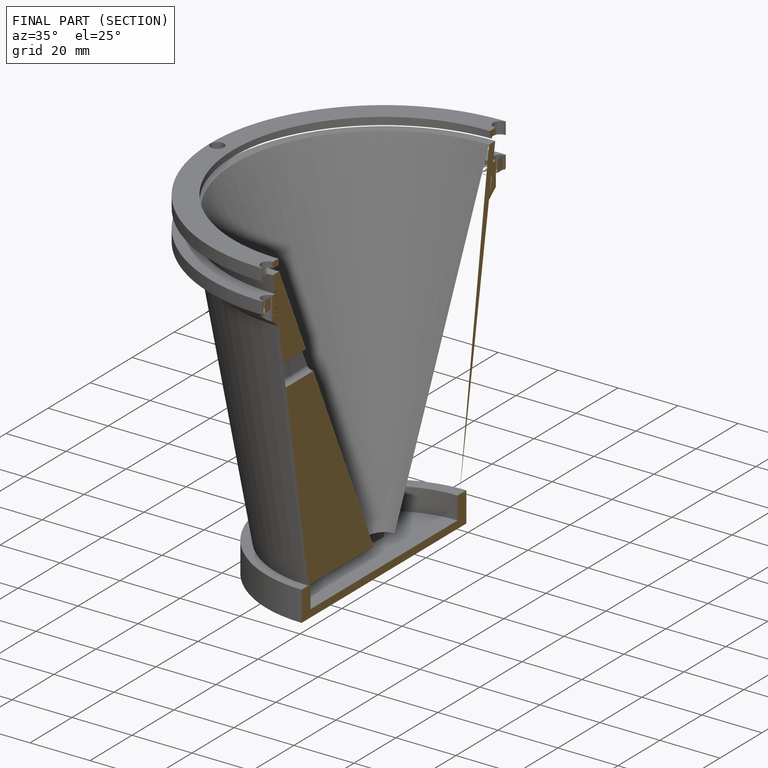
[diagram: finished part — half-section view (interior)]
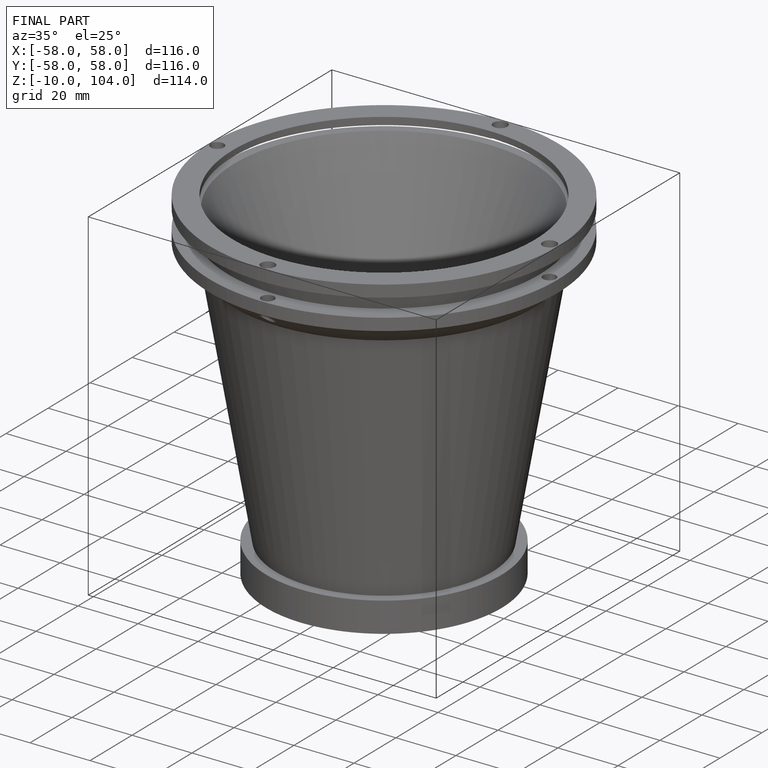
[diagram: finished part — iso view with bounding-box wireframe]
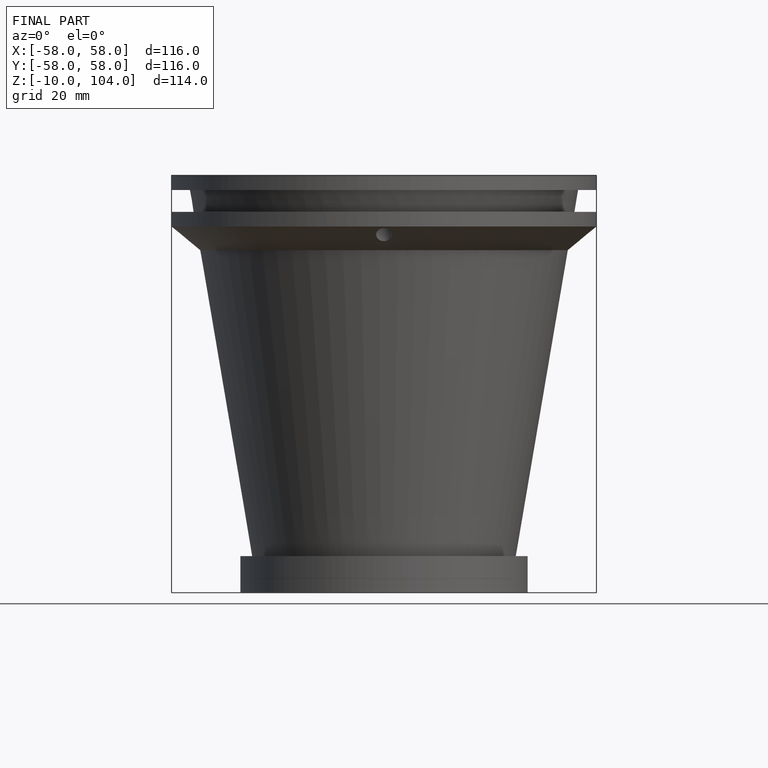
[diagram: finished part — front view with bounding-box wireframe]
